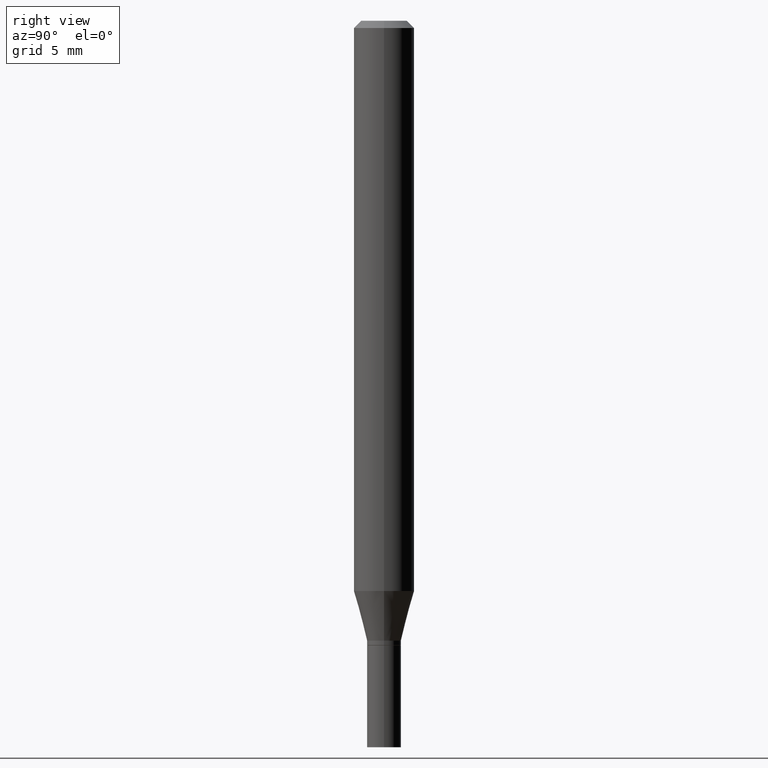
[diagram: clean part render]
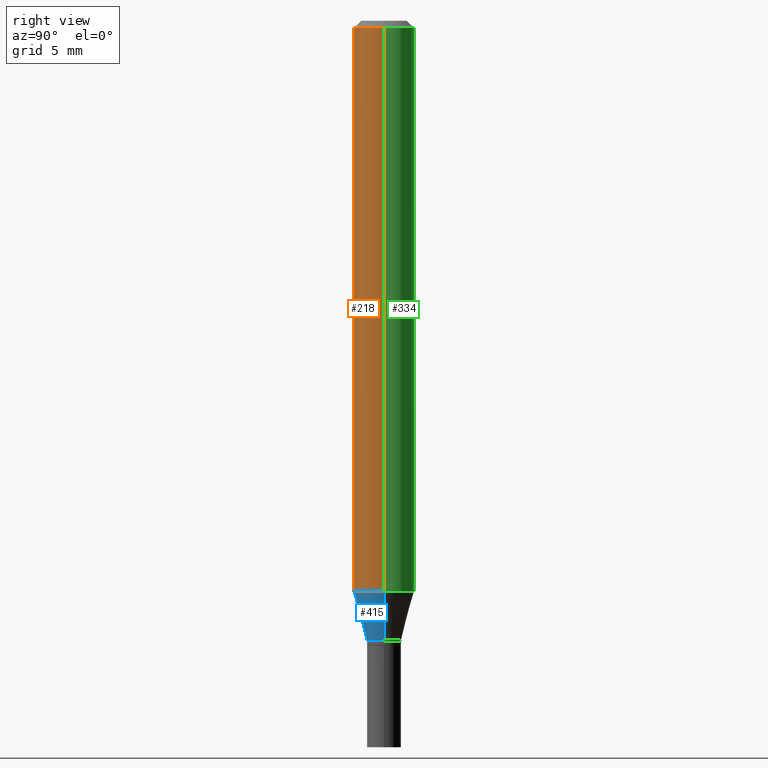
[diagram: same view with three faces highlighted in distinct colors, each labeled with its STEP entity id]
A machine part, right view with three faces highlighted in distinct colors.
Their STEP definitions:

[orange] entity #218 — the highlighted cylindrical surface (edge-blend (fillet) strip) has radius 1.5875 mm, axis along (-0, 0, 1).
#26 = CARTESIAN_POINT ( 'NONE',  ( 0.06250000000000000000, -4.547195672942983858E-15, -1.177368602791855512 ) ) ;
#28 = EDGE_CURVE ( 'NONE', #276, #29, #384, .T. ) ;
#29 = VERTEX_POINT ( 'NONE', #281 ) ;
#38 = CIRCLE ( 'NONE', #301, 0.06250000000000000000 ) ;
#42 = LINE ( 'NONE', #330, #372 ) ;
#43 = EDGE_CURVE ( 'NONE', #29, #296, #38, .T. ) ;
#60 = AXIS2_PLACEMENT_3D ( 'NONE', #322, #462, #62 ) ;
#62 = DIRECTION ( 'NONE',  ( 1.000000000000000000, -6.982962677686270655E-15, 0.000000000000000000 ) ) ;
#63 = FACE_OUTER_BOUND ( 'NONE', #244, .T. ) ;
#68 = DIRECTION ( 'NONE',  ( -2.445468806185136597E-29, 3.491481338843145583E-15, 1.000000000000000000 ) ) ;
#101 = VERTEX_POINT ( 'NONE', #26 ) ;
#104 = DIRECTION ( 'NONE',  ( 1.000000000000000000, -6.982962677686266711E-15, 4.876176775795935793E-29 ) ) ;
#129 = CYLINDRICAL_SURFACE ( 'NONE', #400, 0.06250000000000000000 ) ;
#131 = CARTESIAN_POINT ( 'NONE',  ( -0.06250000000000000000, 4.440892098500626162E-16, -3.074334431409316114E-30 ) ) ;
#152 = DIRECTION ( 'NONE',  ( -2.445468806185136877E-29, 3.491481338843145188E-15, 1.000000000000000000 ) ) ;
#154 = ORIENTED_EDGE ( 'NONE', *, *, #28, .F. ) ;
#169 = DIRECTION ( 'NONE',  ( 1.000000000000000000, -6.982962677686266711E-15, 0.000000000000000000 ) ) ;
#189 = ORIENTED_EDGE ( 'NONE', *, *, #460, .T. ) ;
#203 = CARTESIAN_POINT ( 'NONE',  ( -0.06250000000000000000, -3.666671295737529572E-15, -1.177368602791855512 ) ) ;
#204 = DIRECTION ( 'NONE',  ( -2.445468806185136877E-29, 3.491481338843145188E-15, 1.000000000000000000 ) ) ;
#207 = ORIENTED_EDGE ( 'NONE', *, *, #291, .T. ) ;
#218 = ADVANCED_FACE ( 'NONE', ( #63 ), #129, .T. ) ;
#240 = CARTESIAN_POINT ( 'NONE',  ( 3.668203209277705088E-31, -5.237222008264718399E-17, -0.01499999999999999944 ) ) ;
#244 = EDGE_LOOP ( 'NONE', ( #154, #207, #189, #264 ) ) ;
#264 = ORIENTED_EDGE ( 'NONE', *, *, #43, .F. ) ;
#272 = CIRCLE ( 'NONE', #60, 0.06250000000000000000 ) ;
#276 = VERTEX_POINT ( 'NONE', #203 ) ;
#281 = CARTESIAN_POINT ( 'NONE',  ( -0.06250000000000000000, -1.637477152985056820E-15, -0.01499999999999999944 ) ) ;
#291 = EDGE_CURVE ( 'NONE', #276, #101, #272, .T. ) ;
#296 = VERTEX_POINT ( 'NONE', #313 ) ;
#301 = AXIS2_PLACEMENT_3D ( 'NONE', #240, #419, #169 ) ;
#313 = CARTESIAN_POINT ( 'NONE',  ( 0.06250000000000000000, -4.888073874380388472E-16, -0.01499999999999999944 ) ) ;
#322 = CARTESIAN_POINT ( 'NONE',  ( 2.879218191509261497E-29, -4.110760505587591399E-15, -1.177368602791855512 ) ) ;
#324 = VECTOR ( 'NONE', #204, 39.37007874015748143 ) ;
#330 = CARTESIAN_POINT ( 'NONE',  ( 0.06250000000000000000, -4.364351673553916694E-16, 3.047610484872459871E-30 ) ) ;
#372 = VECTOR ( 'NONE', #152, 39.37007874015748143 ) ;
#384 = LINE ( 'NONE', #131, #324 ) ;
#400 = AXIS2_PLACEMENT_3D ( 'NONE', #423, #68, #104 ) ;
#419 = DIRECTION ( 'NONE',  ( -2.445468806185136597E-29, 3.491481338843145583E-15, 1.000000000000000000 ) ) ;
#423 = CARTESIAN_POINT ( 'NONE',  ( 0.000000000000000000, 0.000000000000000000, 0.000000000000000000 ) ) ;
#460 = EDGE_CURVE ( 'NONE', #101, #296, #42, .T. ) ;
#462 = DIRECTION ( 'NONE',  ( -2.445468806185136597E-29, 3.491481338843145583E-15, 1.000000000000000000 ) ) ;

[blue] entity #415 — the highlighted conical surface has half-angle 15 deg.
#4 = CARTESIAN_POINT ( 'NONE',  ( -0.03499999999999992700, -4.220406156203192133E-15, -1.280000000000000027 ) ) ;
#13 = VERTEX_POINT ( 'NONE', #201 ) ;
#22 = DIRECTION ( 'NONE',  ( 1.000000000000000000, -6.982962677686264344E-15, 0.000000000000000000 ) ) ;
#26 = CARTESIAN_POINT ( 'NONE',  ( 0.06250000000000000000, -4.547195672942983858E-15, -1.177368602791855512 ) ) ;
#30 = CARTESIAN_POINT ( 'NONE',  ( 0.03499999999999992700, -4.713499807438245807E-15, -1.280000000000000027 ) ) ;
#46 = ORIENTED_EDGE ( 'NONE', *, *, #221, .T. ) ;
#56 = EDGE_CURVE ( 'NONE', #13, #345, #102, .T. ) ;
#60 = AXIS2_PLACEMENT_3D ( 'NONE', #322, #462, #62 ) ;
#62 = DIRECTION ( 'NONE',  ( 1.000000000000000000, -6.982962677686270655E-15, 0.000000000000000000 ) ) ;
#101 = VERTEX_POINT ( 'NONE', #26 ) ;
#102 = CIRCLE ( 'NONE', #357, 0.03499999999999992700 ) ;
#105 = CARTESIAN_POINT ( 'NONE',  ( 3.130200071916974821E-29, -4.469096113719226630E-15, -1.280000000000000027 ) ) ;
#107 = DIRECTION ( 'NONE',  ( 0.2588190451025205729, 1.565188264969627490E-15, 0.9659258262890682012 ) ) ;
#111 = FACE_OUTER_BOUND ( 'NONE', #171, .T. ) ;
#112 = CARTESIAN_POINT ( 'NONE',  ( 3.130200071916974821E-29, -4.469096113719226630E-15, -1.280000000000000027 ) ) ;
#123 = ORIENTED_EDGE ( 'NONE', *, *, #56, .T. ) ;
#141 = CARTESIAN_POINT ( 'NONE',  ( 0.03499999999999992700, -4.713499807438245807E-15, -1.280000000000000027 ) ) ;
#153 = AXIS2_PLACEMENT_3D ( 'NONE', #112, #392, #327 ) ;
#156 = ORIENTED_EDGE ( 'NONE', *, *, #397, .F. ) ;
#171 = EDGE_LOOP ( 'NONE', ( #156, #123, #46, #185 ) ) ;
#184 = VECTOR ( 'NONE', #107, 39.37007874015748854 ) ;
#185 = ORIENTED_EDGE ( 'NONE', *, *, #291, .F. ) ;
#201 = CARTESIAN_POINT ( 'NONE',  ( -0.03499999999999992700, -3.943538725970360852E-15, -1.280000000000000027 ) ) ;
#203 = CARTESIAN_POINT ( 'NONE',  ( -0.06250000000000000000, -3.666671295737529572E-15, -1.177368602791855512 ) ) ;
#210 = LINE ( 'NONE', #30, #184 ) ;
#221 = EDGE_CURVE ( 'NONE', #345, #101, #210, .T. ) ;
#246 = LINE ( 'NONE', #4, #250 ) ;
#250 = VECTOR ( 'NONE', #260, 39.37007874015748854 ) ;
#260 = DIRECTION ( 'NONE',  ( -0.2588190451025205729, 5.211531920934544731E-15, 0.9659258262890682012 ) ) ;
#272 = CIRCLE ( 'NONE', #60, 0.06250000000000000000 ) ;
#276 = VERTEX_POINT ( 'NONE', #203 ) ;
#291 = EDGE_CURVE ( 'NONE', #276, #101, #272, .T. ) ;
#322 = CARTESIAN_POINT ( 'NONE',  ( 2.879218191509261497E-29, -4.110760505587591399E-15, -1.177368602791855512 ) ) ;
#327 = DIRECTION ( 'NONE',  ( 1.000000000000000000, -6.982962677686264344E-15, 0.000000000000000000 ) ) ;
#336 = CONICAL_SURFACE ( 'NONE', #153, 0.03499999999999992700, 0.2617993877991492968 ) ;
#345 = VERTEX_POINT ( 'NONE', #141 ) ;
#357 = AXIS2_PLACEMENT_3D ( 'NONE', #105, #450, #22 ) ;
#392 = DIRECTION ( 'NONE',  ( -2.445468806185136597E-29, 3.491481338843145583E-15, 1.000000000000000000 ) ) ;
#397 = EDGE_CURVE ( 'NONE', #13, #276, #246, .T. ) ;
#415 = ADVANCED_FACE ( 'NONE', ( #111 ), #336, .T. ) ;
#450 = DIRECTION ( 'NONE',  ( -2.445468806185136597E-29, 3.491481338843145583E-15, 1.000000000000000000 ) ) ;
#462 = DIRECTION ( 'NONE',  ( -2.445468806185136597E-29, 3.491481338843145583E-15, 1.000000000000000000 ) ) ;

[green] entity #334 — the highlighted cylindrical surface (edge-blend (fillet) strip) has radius 1.5875 mm, axis along (-0, 0, 1).
#24 = AXIS2_PLACEMENT_3D ( 'NONE', #110, #355, #37 ) ;
#26 = CARTESIAN_POINT ( 'NONE',  ( 0.06250000000000000000, -4.547195672942983858E-15, -1.177368602791855512 ) ) ;
#28 = EDGE_CURVE ( 'NONE', #276, #29, #384, .T. ) ;
#29 = VERTEX_POINT ( 'NONE', #281 ) ;
#37 = DIRECTION ( 'NONE',  ( 1.000000000000000000, -6.982962677686266711E-15, 0.000000000000000000 ) ) ;
#42 = LINE ( 'NONE', #330, #372 ) ;
#47 = EDGE_LOOP ( 'NONE', ( #262, #454, #229, #55 ) ) ;
#55 = ORIENTED_EDGE ( 'NONE', *, *, #460, .F. ) ;
#65 = DIRECTION ( 'NONE',  ( -2.445468806185136597E-29, 3.491481338843145583E-15, 1.000000000000000000 ) ) ;
#85 = AXIS2_PLACEMENT_3D ( 'NONE', #412, #99, #414 ) ;
#99 = DIRECTION ( 'NONE',  ( -2.445468806185136597E-29, 3.491481338843145583E-15, 1.000000000000000000 ) ) ;
#101 = VERTEX_POINT ( 'NONE', #26 ) ;
#110 = CARTESIAN_POINT ( 'NONE',  ( 3.668203209277705088E-31, -5.237222008264718399E-17, -0.01499999999999999944 ) ) ;
#116 = EDGE_CURVE ( 'NONE', #101, #276, #190, .T. ) ;
#131 = CARTESIAN_POINT ( 'NONE',  ( -0.06250000000000000000, 4.440892098500626162E-16, -3.074334431409316114E-30 ) ) ;
#152 = DIRECTION ( 'NONE',  ( -2.445468806185136877E-29, 3.491481338843145188E-15, 1.000000000000000000 ) ) ;
#173 = FACE_OUTER_BOUND ( 'NONE', #47, .T. ) ;
#188 = EDGE_CURVE ( 'NONE', #296, #29, #455, .T. ) ;
#190 = CIRCLE ( 'NONE', #85, 0.06250000000000000000 ) ;
#203 = CARTESIAN_POINT ( 'NONE',  ( -0.06250000000000000000, -3.666671295737529572E-15, -1.177368602791855512 ) ) ;
#204 = DIRECTION ( 'NONE',  ( -2.445468806185136877E-29, 3.491481338843145188E-15, 1.000000000000000000 ) ) ;
#229 = ORIENTED_EDGE ( 'NONE', *, *, #188, .F. ) ;
#241 = CARTESIAN_POINT ( 'NONE',  ( 0.000000000000000000, 0.000000000000000000, 0.000000000000000000 ) ) ;
#243 = CYLINDRICAL_SURFACE ( 'NONE', #377, 0.06250000000000000000 ) ;
#262 = ORIENTED_EDGE ( 'NONE', *, *, #116, .T. ) ;
#276 = VERTEX_POINT ( 'NONE', #203 ) ;
#281 = CARTESIAN_POINT ( 'NONE',  ( -0.06250000000000000000, -1.637477152985056820E-15, -0.01499999999999999944 ) ) ;
#296 = VERTEX_POINT ( 'NONE', #313 ) ;
#313 = CARTESIAN_POINT ( 'NONE',  ( 0.06250000000000000000, -4.888073874380388472E-16, -0.01499999999999999944 ) ) ;
#324 = VECTOR ( 'NONE', #204, 39.37007874015748143 ) ;
#330 = CARTESIAN_POINT ( 'NONE',  ( 0.06250000000000000000, -4.364351673553916694E-16, 3.047610484872459871E-30 ) ) ;
#334 = ADVANCED_FACE ( 'NONE', ( #173 ), #243, .T. ) ;
#355 = DIRECTION ( 'NONE',  ( -2.445468806185136597E-29, 3.491481338843145583E-15, 1.000000000000000000 ) ) ;
#372 = VECTOR ( 'NONE', #152, 39.37007874015748143 ) ;
#377 = AXIS2_PLACEMENT_3D ( 'NONE', #241, #65, #459 ) ;
#384 = LINE ( 'NONE', #131, #324 ) ;
#412 = CARTESIAN_POINT ( 'NONE',  ( 2.879218191509261497E-29, -4.110760505587591399E-15, -1.177368602791855512 ) ) ;
#414 = DIRECTION ( 'NONE',  ( 1.000000000000000000, -6.982962677686270655E-15, 0.000000000000000000 ) ) ;
#454 = ORIENTED_EDGE ( 'NONE', *, *, #28, .T. ) ;
#455 = CIRCLE ( 'NONE', #24, 0.06250000000000000000 ) ;
#459 = DIRECTION ( 'NONE',  ( 1.000000000000000000, -6.982962677686266711E-15, 4.876176775795935793E-29 ) ) ;
#460 = EDGE_CURVE ( 'NONE', #101, #296, #42, .T. ) ;